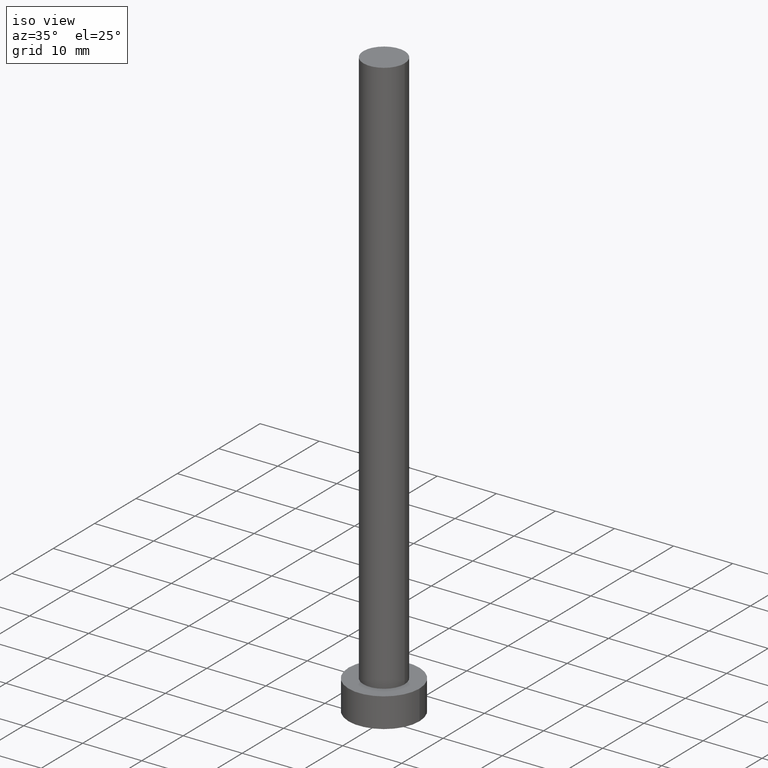
[diagram: clean part render]
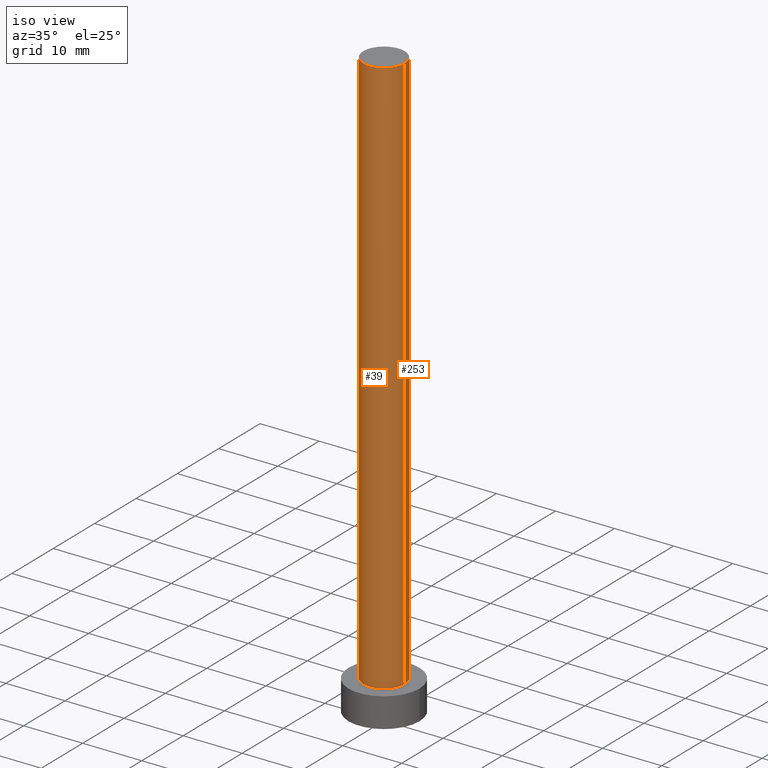
[diagram: same view with one multi-face feature highlighted, each face labeled with its STEP entity id]
A machine part, iso view. The highlighted faces form ONE feature: a constant-radius fillet chain: 2 tangent blend faces with common blend radius 3.5 mm. The faces share edges in the B-rep.
Their STEP definitions:
[1] entity #39 (Cylinder):
#5 = DIRECTION ( 'NONE',  ( -0.000000000000000000, -0.000000000000000000, -1.000000000000000000 ) ) ;
#6 = DIRECTION ( 'NONE',  ( -1.000000000000000000, 0.000000000000000000, 0.000000000000000000 ) ) ;
#11 = DIRECTION ( 'NONE',  ( 0.000000000000000000, 0.000000000000000000, 1.000000000000000000 ) ) ;
#13 = CARTESIAN_POINT ( 'NONE',  ( 0.000000000000000000, 0.000000000000000000, 100.0000000000000000 ) ) ;
#16 = ORIENTED_EDGE ( 'NONE', *, *, #103, .T. ) ;
#19 = ORIENTED_EDGE ( 'NONE', *, *, #193, .F. ) ;
#39 = ADVANCED_FACE ( 'NONE', ( #243 ), #105, .T. ) ;
#55 = LINE ( 'NONE', #117, #157 ) ;
#61 = VERTEX_POINT ( 'NONE', #156 ) ;
#72 = EDGE_CURVE ( 'NONE', #223, #61, #99, .T. ) ;
#74 = DIRECTION ( 'NONE',  ( -0.000000000000000000, -0.000000000000000000, -1.000000000000000000 ) ) ;
#76 = DIRECTION ( 'NONE',  ( 1.000000000000000000, 0.000000000000000000, 0.000000000000000000 ) ) ;
#88 = CARTESIAN_POINT ( 'NONE',  ( -3.500000000000000000, 0.000000000000000000, 100.0000000000000000 ) ) ;
#91 = DIRECTION ( 'NONE',  ( 1.000000000000000000, 0.000000000000000000, 0.000000000000000000 ) ) ;
#99 = CIRCLE ( 'NONE', #167, 3.500000000000000000 ) ;
#103 = EDGE_CURVE ( 'NONE', #241, #223, #222, .T. ) ;
#105 = CYLINDRICAL_SURFACE ( 'NONE', #180, 3.500000000000000000 ) ;
#112 = VERTEX_POINT ( 'NONE', #238 ) ;
#117 = CARTESIAN_POINT ( 'NONE',  ( 3.500000000000000000, 4.286263797015736595E-16, 100.0000000000000000 ) ) ;
#127 = ORIENTED_EDGE ( 'NONE', *, *, #72, .T. ) ;
#128 = DIRECTION ( 'NONE',  ( 0.000000000000000000, 0.000000000000000000, 1.000000000000000000 ) ) ;
#133 = VECTOR ( 'NONE', #5, 1000.000000000000000 ) ;
#137 = DIRECTION ( 'NONE',  ( -0.000000000000000000, -0.000000000000000000, -1.000000000000000000 ) ) ;
#143 = AXIS2_PLACEMENT_3D ( 'NONE', #13, #11, #76 ) ;
#145 = EDGE_LOOP ( 'NONE', ( #19, #148, #16, #127 ) ) ;
#148 = ORIENTED_EDGE ( 'NONE', *, *, #181, .F. ) ;
#156 = CARTESIAN_POINT ( 'NONE',  ( 3.500000000000000000, 4.286263797015736595E-16, 5.000000000000000000 ) ) ;
#157 = VECTOR ( 'NONE', #137, 1000.000000000000000 ) ;
#167 = AXIS2_PLACEMENT_3D ( 'NONE', #208, #128, #91 ) ;
#171 = CIRCLE ( 'NONE', #143, 3.500000000000000000 ) ;
#172 = CARTESIAN_POINT ( 'NONE',  ( 0.000000000000000000, 0.000000000000000000, 100.0000000000000000 ) ) ;
#174 = CARTESIAN_POINT ( 'NONE',  ( -3.500000000000000000, 0.000000000000000000, 100.0000000000000000 ) ) ;
#180 = AXIS2_PLACEMENT_3D ( 'NONE', #172, #74, #6 ) ;
#181 = EDGE_CURVE ( 'NONE', #241, #112, #171, .T. ) ;
#193 = EDGE_CURVE ( 'NONE', #112, #61, #55, .T. ) ;
#208 = CARTESIAN_POINT ( 'NONE',  ( 0.000000000000000000, 0.000000000000000000, 5.000000000000000000 ) ) ;
#212 = CARTESIAN_POINT ( 'NONE',  ( -3.500000000000000000, 0.000000000000000000, 5.000000000000000000 ) ) ;
#222 = LINE ( 'NONE', #88, #133 ) ;
#223 = VERTEX_POINT ( 'NONE', #212 ) ;
#238 = CARTESIAN_POINT ( 'NONE',  ( 3.500000000000000000, 4.286263797015736595E-16, 100.0000000000000000 ) ) ;
#241 = VERTEX_POINT ( 'NONE', #174 ) ;
#243 = FACE_OUTER_BOUND ( 'NONE', #145, .T. ) ;
[2] entity #253 (Cylinder):
#3 = ORIENTED_EDGE ( 'NONE', *, *, #110, .T. ) ;
#5 = DIRECTION ( 'NONE',  ( -0.000000000000000000, -0.000000000000000000, -1.000000000000000000 ) ) ;
#23 = ORIENTED_EDGE ( 'NONE', *, *, #59, .F. ) ;
#30 = CIRCLE ( 'NONE', #209, 3.500000000000000000 ) ;
#34 = DIRECTION ( 'NONE',  ( -1.000000000000000000, 0.000000000000000000, 0.000000000000000000 ) ) ;
#48 = CARTESIAN_POINT ( 'NONE',  ( 0.000000000000000000, 0.000000000000000000, 5.000000000000000000 ) ) ;
#50 = CARTESIAN_POINT ( 'NONE',  ( 0.000000000000000000, 0.000000000000000000, 100.0000000000000000 ) ) ;
#53 = CIRCLE ( 'NONE', #198, 3.500000000000000000 ) ;
#55 = LINE ( 'NONE', #117, #157 ) ;
#56 = CYLINDRICAL_SURFACE ( 'NONE', #126, 3.500000000000000000 ) ;
#59 = EDGE_CURVE ( 'NONE', #112, #241, #30, .T. ) ;
#61 = VERTEX_POINT ( 'NONE', #156 ) ;
#71 = DIRECTION ( 'NONE',  ( 0.000000000000000000, 0.000000000000000000, 1.000000000000000000 ) ) ;
#73 = DIRECTION ( 'NONE',  ( 1.000000000000000000, 0.000000000000000000, 0.000000000000000000 ) ) ;
#75 = CARTESIAN_POINT ( 'NONE',  ( 0.000000000000000000, 0.000000000000000000, 100.0000000000000000 ) ) ;
#85 = EDGE_LOOP ( 'NONE', ( #23, #132, #3, #225 ) ) ;
#88 = CARTESIAN_POINT ( 'NONE',  ( -3.500000000000000000, 0.000000000000000000, 100.0000000000000000 ) ) ;
#103 = EDGE_CURVE ( 'NONE', #241, #223, #222, .T. ) ;
#110 = EDGE_CURVE ( 'NONE', #61, #223, #53, .T. ) ;
#112 = VERTEX_POINT ( 'NONE', #238 ) ;
#117 = CARTESIAN_POINT ( 'NONE',  ( 3.500000000000000000, 4.286263797015736595E-16, 100.0000000000000000 ) ) ;
#126 = AXIS2_PLACEMENT_3D ( 'NONE', #75, #214, #34 ) ;
#132 = ORIENTED_EDGE ( 'NONE', *, *, #193, .T. ) ;
#133 = VECTOR ( 'NONE', #5, 1000.000000000000000 ) ;
#137 = DIRECTION ( 'NONE',  ( -0.000000000000000000, -0.000000000000000000, -1.000000000000000000 ) ) ;
#156 = CARTESIAN_POINT ( 'NONE',  ( 3.500000000000000000, 4.286263797015736595E-16, 5.000000000000000000 ) ) ;
#157 = VECTOR ( 'NONE', #137, 1000.000000000000000 ) ;
#168 = DIRECTION ( 'NONE',  ( 1.000000000000000000, 0.000000000000000000, 0.000000000000000000 ) ) ;
#174 = CARTESIAN_POINT ( 'NONE',  ( -3.500000000000000000, 0.000000000000000000, 100.0000000000000000 ) ) ;
#193 = EDGE_CURVE ( 'NONE', #112, #61, #55, .T. ) ;
#198 = AXIS2_PLACEMENT_3D ( 'NONE', #48, #202, #168 ) ;
#202 = DIRECTION ( 'NONE',  ( 0.000000000000000000, 0.000000000000000000, 1.000000000000000000 ) ) ;
#209 = AXIS2_PLACEMENT_3D ( 'NONE', #50, #71, #73 ) ;
#212 = CARTESIAN_POINT ( 'NONE',  ( -3.500000000000000000, 0.000000000000000000, 5.000000000000000000 ) ) ;
#214 = DIRECTION ( 'NONE',  ( -0.000000000000000000, -0.000000000000000000, -1.000000000000000000 ) ) ;
#222 = LINE ( 'NONE', #88, #133 ) ;
#223 = VERTEX_POINT ( 'NONE', #212 ) ;
#225 = ORIENTED_EDGE ( 'NONE', *, *, #103, .F. ) ;
#238 = CARTESIAN_POINT ( 'NONE',  ( 3.500000000000000000, 4.286263797015736595E-16, 100.0000000000000000 ) ) ;
#241 = VERTEX_POINT ( 'NONE', #174 ) ;
#246 = FACE_OUTER_BOUND ( 'NONE', #85, .T. ) ;
#253 = ADVANCED_FACE ( 'NONE', ( #246 ), #56, .T. ) ;